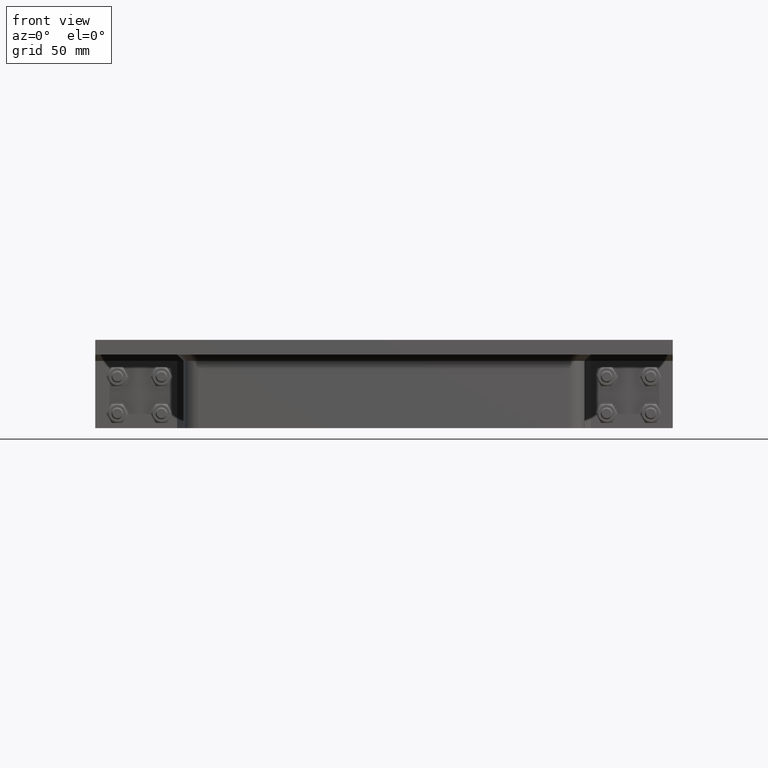
[diagram: clean part render]
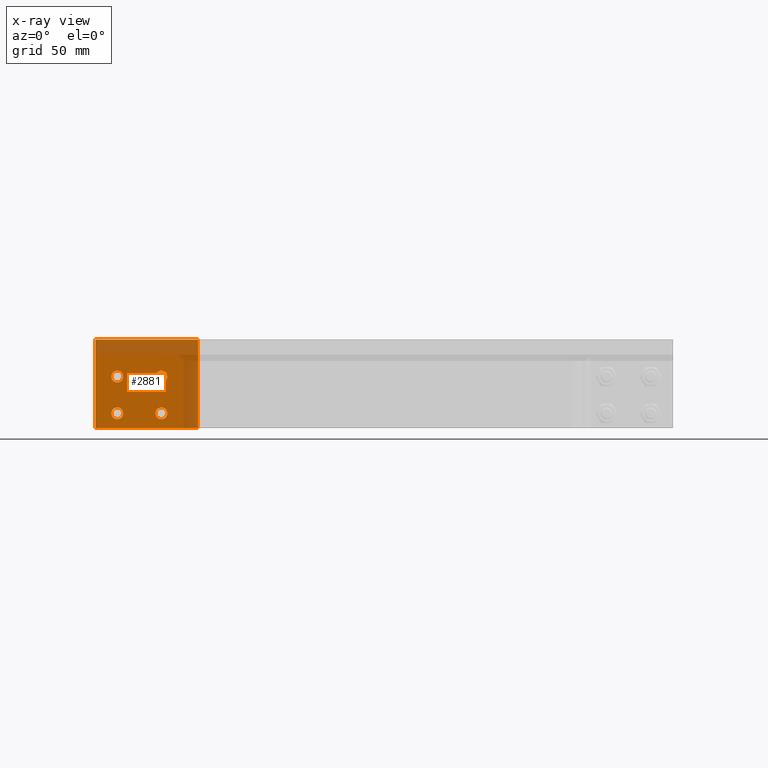
[diagram: x-ray — body ghosted, one internal face saturated and labeled with its STEP entity id]
A machine part, front view, then the same camera in x-ray: the body is ghosted and one INTERNAL B-rep face — a face not visible from any outside direction — is saturated and labeled: STEP entity #2881.
In plain terms, the highlighted planar face has unit normal (0, 1, 0).
Its self-contained STEP definition (entity closure, byte-faithful):
#291=FACE_BOUND('',#782,.T.);
#292=FACE_BOUND('',#783,.T.);
#293=FACE_BOUND('',#784,.T.);
#294=FACE_BOUND('',#785,.T.);
#390=CIRCLE('',#3331,4.);
#392=CIRCLE('',#3334,4.);
#394=CIRCLE('',#3337,4.);
#396=CIRCLE('',#3340,4.);
#552=FACE_OUTER_BOUND('',#781,.T.);
#781=EDGE_LOOP('',(#2421,#2422,#2423,#2424));
#782=EDGE_LOOP('',(#2425));
#783=EDGE_LOOP('',(#2426));
#784=EDGE_LOOP('',(#2427));
#785=EDGE_LOOP('',(#2428));
#1018=LINE('',#4821,#1239);
#1022=LINE('',#4829,#1243);
#1025=LINE('',#4835,#1246);
#1028=LINE('',#4840,#1249);
#1239=VECTOR('',#3992,10.);
#1243=VECTOR('',#3998,10.);
#1246=VECTOR('',#4003,10.);
#1249=VECTOR('',#4008,10.);
#1457=VERTEX_POINT('',#4797);
#1459=VERTEX_POINT('',#4803);
#1461=VERTEX_POINT('',#4809);
#1463=VERTEX_POINT('',#4815);
#1464=VERTEX_POINT('',#4819);
#1465=VERTEX_POINT('',#4820);
#1468=VERTEX_POINT('',#4828);
#1470=VERTEX_POINT('',#4834);
#1783=EDGE_CURVE('',#1457,#1457,#390,.T.);
#1786=EDGE_CURVE('',#1459,#1459,#392,.T.);
#1789=EDGE_CURVE('',#1461,#1461,#394,.T.);
#1792=EDGE_CURVE('',#1463,#1463,#396,.T.);
#1793=EDGE_CURVE('',#1464,#1465,#1018,.T.);
#1797=EDGE_CURVE('',#1465,#1468,#1022,.T.);
#1800=EDGE_CURVE('',#1468,#1470,#1025,.T.);
#1803=EDGE_CURVE('',#1470,#1464,#1028,.T.);
#2421=ORIENTED_EDGE('',*,*,#1803,.T.);
#2422=ORIENTED_EDGE('',*,*,#1793,.T.);
#2423=ORIENTED_EDGE('',*,*,#1797,.T.);
#2424=ORIENTED_EDGE('',*,*,#1800,.T.);
#2425=ORIENTED_EDGE('',*,*,#1783,.T.);
#2426=ORIENTED_EDGE('',*,*,#1786,.T.);
#2427=ORIENTED_EDGE('',*,*,#1789,.T.);
#2428=ORIENTED_EDGE('',*,*,#1792,.T.);
#2749=PLANE('',#3345);
#2881=ADVANCED_FACE('',(#552,#291,#292,#293,#294),#2749,.F.);
#3331=AXIS2_PLACEMENT_3D('',#4799,#3967,#3968);
#3334=AXIS2_PLACEMENT_3D('',#4805,#3974,#3975);
#3337=AXIS2_PLACEMENT_3D('',#4811,#3981,#3982);
#3340=AXIS2_PLACEMENT_3D('',#4817,#3988,#3989);
#3345=AXIS2_PLACEMENT_3D('',#4842,#4010,#4011);
#3967=DIRECTION('center_axis',(0.,0.,1.));
#3968=DIRECTION('ref_axis',(1.,0.,0.));
#3974=DIRECTION('center_axis',(0.,0.,1.));
#3975=DIRECTION('ref_axis',(1.,0.,0.));
#3981=DIRECTION('center_axis',(0.,0.,1.));
#3982=DIRECTION('ref_axis',(1.,0.,0.));
#3988=DIRECTION('center_axis',(0.,0.,1.));
#3989=DIRECTION('ref_axis',(1.,0.,0.));
#3992=DIRECTION('',(2.22044604925031E-16,-1.,0.));
#3998=DIRECTION('',(-1.,0.,0.));
#4003=DIRECTION('',(2.22044604925031E-16,1.,0.));
#4008=DIRECTION('',(1.,0.,0.));
#4010=DIRECTION('center_axis',(0.,0.,1.));
#4011=DIRECTION('ref_axis',(1.,0.,0.));
#4797=CARTESIAN_POINT('',(16.,-20.,0.));
#4799=CARTESIAN_POINT('Origin',(20.,-20.,0.));
#4803=CARTESIAN_POINT('',(-14.,5.00000000000001,0.));
#4805=CARTESIAN_POINT('Origin',(-9.99999999999997,5.00000000000001,0.));
#4809=CARTESIAN_POINT('',(16.,5.00000000000001,0.));
#4811=CARTESIAN_POINT('Origin',(20.,5.00000000000001,0.));
#4815=CARTESIAN_POINT('',(-14.,-20.,0.));
#4817=CARTESIAN_POINT('Origin',(-9.99999999999998,-20.,0.));
#4819=CARTESIAN_POINT('',(35.,30.,0.));
#4820=CARTESIAN_POINT('',(35.,-30.,0.));
#4821=CARTESIAN_POINT('',(35.,30.,0.));
#4828=CARTESIAN_POINT('',(-35.,-30.,0.));
#4829=CARTESIAN_POINT('',(35.,-30.,0.));
#4834=CARTESIAN_POINT('',(-35.,30.,0.));
#4835=CARTESIAN_POINT('',(-35.,-30.,0.));
#4840=CARTESIAN_POINT('',(-35.,30.,0.));
#4842=CARTESIAN_POINT('Origin',(0.,5.12410626750072E-15,0.));